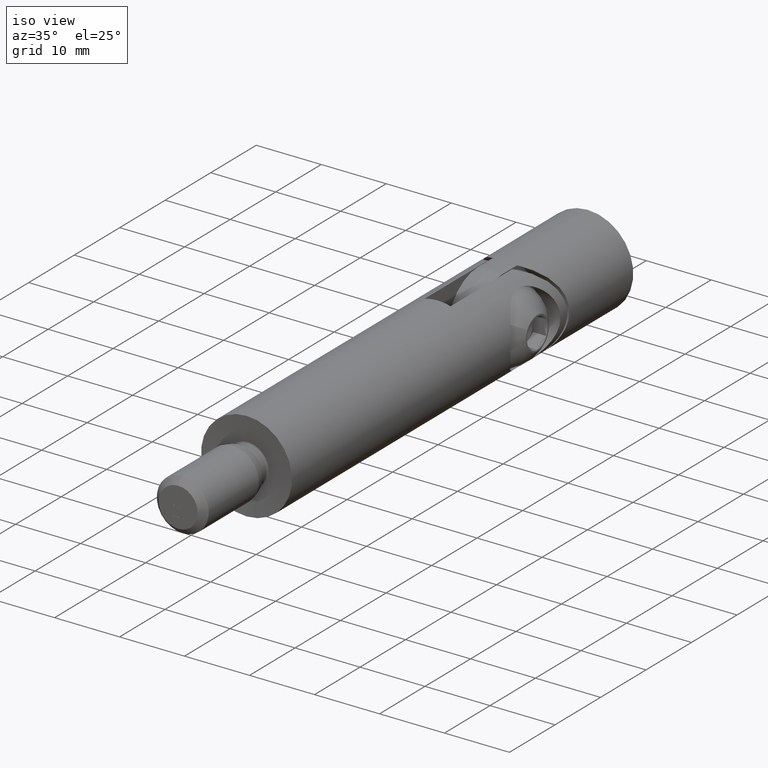
[diagram: clean part render]
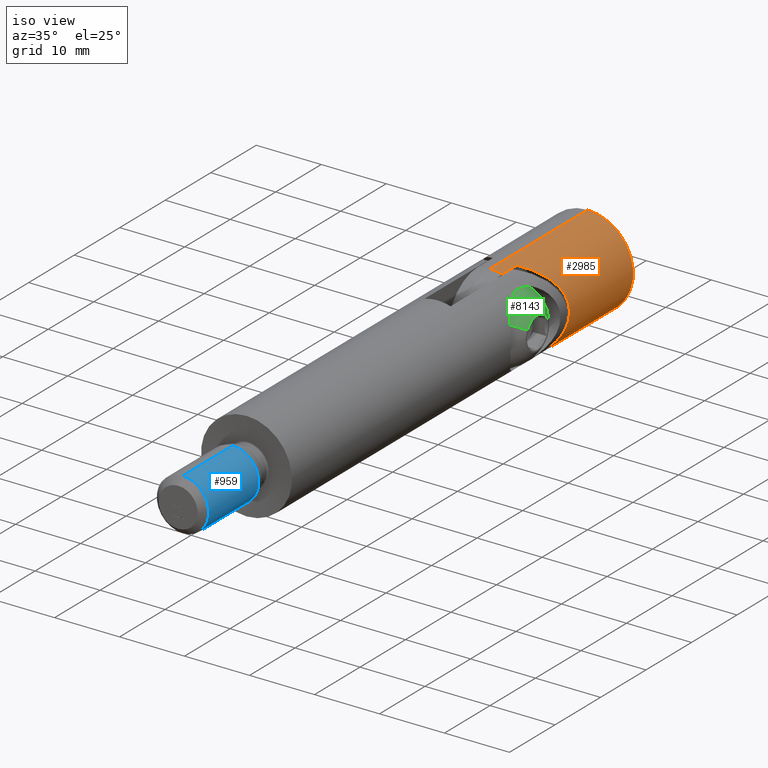
[diagram: same view with three faces highlighted in distinct colors, each labeled with its STEP entity id]
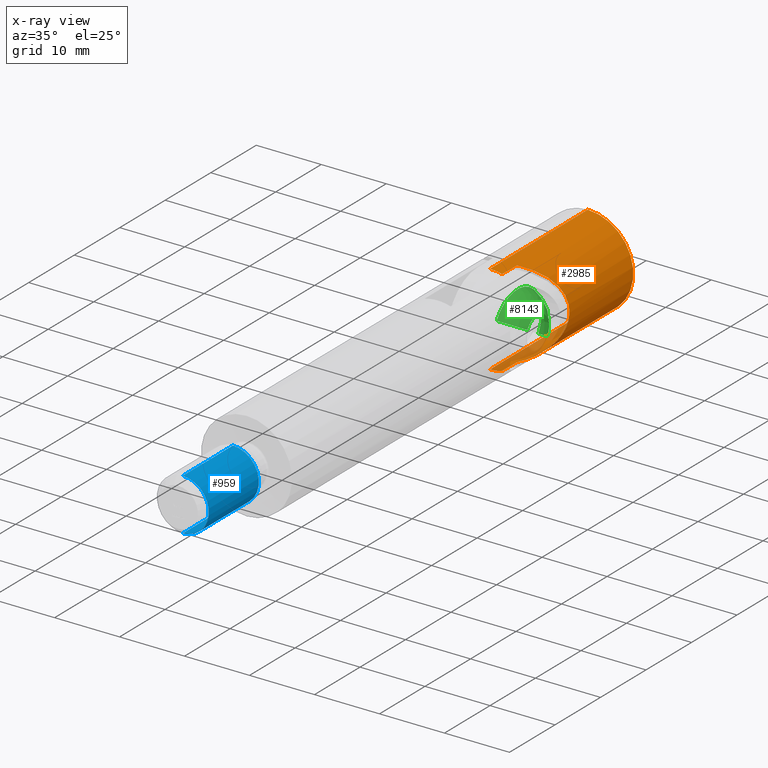
[diagram: x-ray of the same camera — body ghosted, the three highlighted faces saturated]
A machine part, iso view with three faces highlighted in distinct colors.
The next image is the same camera in x-ray (body ghosted, the three faces saturated) — at least one of them is partly hidden behind the body in this view.
Their STEP definitions:

[orange] entity #2985 — the highlighted cylindrical surface (partial cylindrical patch) has radius 7 mm, axis along (-0, -1, -0).
#200 = AXIS2_PLACEMENT_3D ( 'NONE', #10956, #4187, #4334 ) ;
#411 = CIRCLE ( 'NONE', #200, 7.000000000000000000 ) ;
#692 = CARTESIAN_POINT ( 'NONE',  ( 5.158722917360803400, 12.81821483151873600, 4.745580836556968900 ) ) ;
#828 = CARTESIAN_POINT ( 'NONE',  ( 6.852195092240849700, 14.36222759537060300, -1.446130256783215500 ) ) ;
#884 = CARTESIAN_POINT ( 'NONE',  ( 5.958167951393196700, 13.53821051843821800, -3.679402157807246900 ) ) ;
#936 = CARTESIAN_POINT ( 'NONE',  ( 6.131654851988763300, 13.69668656183775600, 3.382284619595403300 ) ) ;
#982 = CARTESIAN_POINT ( 'NONE',  ( 6.998237021894412100, 14.49835455545503200, 0.4525245489973078700 ) ) ;
#997 = EDGE_LOOP ( 'NONE', ( #6191, #10679, #7182, #13024, #4136, #1492, #4315, #2712 ) ) ;
#1089 = EDGE_CURVE ( 'NONE', #12015, #4788, #12154, .T. ) ;
#1492 = ORIENTED_EDGE ( 'NONE', *, *, #3674, .F. ) ;
#1953 = VECTOR ( 'NONE', #6720, 1000.000000000000000 ) ;
#2025 = CARTESIAN_POINT ( 'NONE',  ( 4.108124291350670800, 11.90897019837056100, -5.678559880547872800 ) ) ;
#2073 = CARTESIAN_POINT ( 'NONE',  ( 3.214992365047507400, 11.18785072850656100, -6.228062241702694700 ) ) ;
#2173 = CARTESIAN_POINT ( 'NONE',  ( 6.420604678543759800, 13.96213157371848400, -2.818021770332045200 ) ) ;
#2249 = VERTEX_POINT ( 'NONE', #7916 ) ;
#2623 = CARTESIAN_POINT ( 'NONE',  ( 0.0000000000000000000, 28.50000000000000400, -7.000000000000000000 ) ) ;
#2712 = ORIENTED_EDGE ( 'NONE', *, *, #1089, .F. ) ;
#2985 = ADVANCED_FACE ( 'NONE', ( #4346 ), #9647, .T. ) ;
#3004 = VERTEX_POINT ( 'NONE', #7850 ) ;
#3103 = CARTESIAN_POINT ( 'NONE',  ( 6.396587538579070500, 13.94011484652583600, 2.850110027396204800 ) ) ;
#3104 = DIRECTION ( 'NONE',  ( 0.0000000000000000000, 1.000000000000000000, 0.0000000000000000000 ) ) ;
#3119 = CARTESIAN_POINT ( 'NONE',  ( 1.870000000000000100, 28.50000000000000400, 6.745598564990365800 ) ) ;
#3249 = CARTESIAN_POINT ( 'NONE',  ( 2.571272951763550200, 10.71663320888812300, -6.520237004999565000 ) ) ;
#3299 = CARTESIAN_POINT ( 'NONE',  ( 4.391495753501885700, 12.14950710368595600, -5.462820688665706500 ) ) ;
#3330 = DIRECTION ( 'NONE',  ( 0.0000000000000000000, 0.0000000000000000000, -1.000000000000000000 ) ) ;
#3674 = EDGE_CURVE ( 'NONE', #8768, #6416, #10626, .T. ) ;
#3683 = AXIS2_PLACEMENT_3D ( 'NONE', #8702, #13236, #4320 ) ;
#3821 = VECTOR ( 'NONE', #7643, 1000.000000000000000 ) ;
#4136 = ORIENTED_EDGE ( 'NONE', *, *, #5294, .T. ) ;
#4146 = VERTEX_POINT ( 'NONE', #9957 ) ;
#4187 = DIRECTION ( 'NONE',  ( 0.0000000000000000000, 1.000000000000000000, 0.0000000000000000000 ) ) ;
#4315 = ORIENTED_EDGE ( 'NONE', *, *, #5689, .T. ) ;
#4320 = DIRECTION ( 'NONE',  ( 4.440892098500625400E-015, 0.0000000000000000000, -1.000000000000000000 ) ) ;
#4331 = CARTESIAN_POINT ( 'NONE',  ( 5.175268618100263400, 12.83288688309842800, -4.727790351832039700 ) ) ;
#4334 = DIRECTION ( 'NONE',  ( 0.0000000000000000000, 0.0000000000000000000, 1.000000000000000000 ) ) ;
#4346 = FACE_OUTER_BOUND ( 'NONE', #997, .T. ) ;
#4414 = LINE ( 'NONE', #4606, #1953 ) ;
#4604 = DIRECTION ( 'NONE',  ( -0.0000000000000000000, -1.000000000000000000, -0.0000000000000000000 ) ) ;
#4606 = CARTESIAN_POINT ( 'NONE',  ( 8.572527594031471200E-016, 28.50000000000000400, 7.000000000000000000 ) ) ;
#4706 = CARTESIAN_POINT ( 'NONE',  ( 0.0000000000000000000, 28.50000000000000400, -7.000000000000000000 ) ) ;
#4788 = VERTEX_POINT ( 'NONE', #12093 ) ;
#5141 = DIRECTION ( 'NONE',  ( 0.0000000000000000000, 0.0000000000000000000, -1.000000000000000000 ) ) ;
#5178 = AXIS2_PLACEMENT_3D ( 'NONE', #11369, #4604, #3330 ) ;
#5294 = EDGE_CURVE ( 'NONE', #6067, #6416, #6343, .T. ) ;
#5459 = CIRCLE ( 'NONE', #11256, 7.000000000000000000 ) ;
#5471 = CARTESIAN_POINT ( 'NONE',  ( 2.231929679439918200, 10.48470090993690500, -6.645265215172413400 ) ) ;
#5689 = EDGE_CURVE ( 'NONE', #8768, #4788, #9951, .T. ) ;
#5720 = CARTESIAN_POINT ( 'NONE',  ( 1.870000000000000100, 10.27824648249640100, -6.745598564990351600 ) ) ;
#5853 = VECTOR ( 'NONE', #8369, 1000.000000000000000 ) ;
#6067 = VERTEX_POINT ( 'NONE', #10468 ) ;
#6191 = ORIENTED_EDGE ( 'NONE', *, *, #6337, .F. ) ;
#6269 = CARTESIAN_POINT ( 'NONE',  ( 2.232222779690818700, 10.48486810220634700, 6.645183962565413400 ) ) ;
#6337 = EDGE_CURVE ( 'NONE', #2249, #12015, #411, .T. ) ;
#6343 = B_SPLINE_CURVE_WITH_KNOTS ( 'NONE', 3,
 ( #14174, #6269, #13108, #8527, #10809, #13066, #7436, #7480, #692, #8569, #9719, #936, #9918, #3103, #8758, #13342, #12323, #7728, #8914, #7623, #982, #12270, #14469, #11051, #6592, #828, #7780, #11194, #6557, #2173, #6638, #884, #10069, #7677, #14373, #4331, #8865, #3299, #2025, #13389, #2073, #3249, #5471, #14319 ),
 .UNSPECIFIED., .F., .F.,
 ( 4, 2, 2, 2, 2, 2, 2, 2, 2, 2, 2, 2, 2, 2, 2, 2, 2, 2, 2, 2, 2, 4 ),
 ( 5.502793334042465500E-018, 0.001260948252017360100, 0.002521896504034715000, 0.003782844756052070800, 0.005043793008069425700, 0.006304741260086779400, 0.006935215386095456600, 0.007565689512104133800, 0.008196163638112812000, 0.008826637764121491800, 0.01008758601613884600, 0.01071806014214752300, 0.01134853426815620100, 0.01197900839416487700, 0.01260948252017355900, 0.01387043077219091700, 0.01450090489819959700, 0.01513137902420827600, 0.01639232727622563800, 0.01765327552824299700, 0.01891422378026035700, 0.02017517203227771700 ),
 .UNSPECIFIED. ) ;
#6414 = CARTESIAN_POINT ( 'NONE',  ( 0.0000000000000000000, 6.999999999999999100, 0.0000000000000000000 ) ) ;
#6416 = VERTEX_POINT ( 'NONE', #5720 ) ;
#6557 = CARTESIAN_POINT ( 'NONE',  ( 6.632971604203730100, 14.15860253157559100, -2.246116756065410900 ) ) ;
#6592 = CARTESIAN_POINT ( 'NONE',  ( 6.926400498339868200, 14.43134183356609800, -1.033850297823961400 ) ) ;
#6638 = CARTESIAN_POINT ( 'NONE',  ( 6.250608384525469000, 13.80542658195136200, -3.175052303008694100 ) ) ;
#6720 = DIRECTION ( 'NONE',  ( -0.0000000000000000000, -1.000000000000000000, -0.0000000000000000000 ) ) ;
#6973 = LINE ( 'NONE', #3119, #3821 ) ;
#7182 = ORIENTED_EDGE ( 'NONE', *, *, #10489, .T. ) ;
#7436 = CARTESIAN_POINT ( 'NONE',  ( 4.374011456896905500, 12.13458672469868900, 5.476819986840988400 ) ) ;
#7480 = CARTESIAN_POINT ( 'NONE',  ( 4.908671774981573100, 12.59705844197533900, 5.003246425954407600 ) ) ;
#7623 = CARTESIAN_POINT ( 'NONE',  ( 6.958274881665850800, 14.46101813789559100, 0.8719268250471137200 ) ) ;
#7643 = DIRECTION ( 'NONE',  ( -0.0000000000000000000, -1.000000000000000000, -0.0000000000000000000 ) ) ;
#7677 = CARTESIAN_POINT ( 'NONE',  ( 5.638197344332720500, 13.24797314982272000, -4.152891582350720000 ) ) ;
#7728 = CARTESIAN_POINT ( 'NONE',  ( 6.793838014521782900, 14.30792750283110900, 1.698917349309824400 ) ) ;
#7780 = CARTESIAN_POINT ( 'NONE',  ( 6.806144451631316100, 14.31937098305161300, -1.649030719654067700 ) ) ;
#7850 = CARTESIAN_POINT ( 'NONE',  ( 1.870000000000000100, 7.000000000000013300, 6.745598564990365800 ) ) ;
#7916 = CARTESIAN_POINT ( 'NONE',  ( 8.572527594031471200E-016, 28.50000000000000400, 7.000000000000000000 ) ) ;
#8369 = DIRECTION ( 'NONE',  ( 0.0000000000000000000, 1.000000000000000000, 0.0000000000000000000 ) ) ;
#8527 = CARTESIAN_POINT ( 'NONE',  ( 3.204452162761719500, 11.17984585495174900, 6.233310815406204200 ) ) ;
#8569 = CARTESIAN_POINT ( 'NONE',  ( 5.623867894344017200, 13.23434774299881800, 4.183906012492019300 ) ) ;
#8702 = CARTESIAN_POINT ( 'NONE',  ( 0.0000000000000000000, 6.999999999999999100, 0.0000000000000000000 ) ) ;
#8758 = CARTESIAN_POINT ( 'NONE',  ( 6.475397021665902900, 14.01284749487702900, 2.666432615553177200 ) ) ;
#8768 = VERTEX_POINT ( 'NONE', #10078 ) ;
#8865 = CARTESIAN_POINT ( 'NONE',  ( 4.924862303000002100, 12.61127945850119900, -4.987321538263666200 ) ) ;
#8914 = CARTESIAN_POINT ( 'NONE',  ( 6.842019866135720100, 14.35275706316291400, 1.493728750700344300 ) ) ;
#9141 = VECTOR ( 'NONE', #11797, 1000.000000000000000 ) ;
#9647 = CYLINDRICAL_SURFACE ( 'NONE', #5178, 7.000000000000000000 ) ;
#9719 = CARTESIAN_POINT ( 'NONE',  ( 5.838991746425135100, 13.42942480702161500, 3.879991916570835600 ) ) ;
#9918 = CARTESIAN_POINT ( 'NONE',  ( 6.224664799307175800, 13.78198450366831400, 3.208271722163756200 ) ) ;
#9951 = CIRCLE ( 'NONE', #3683, 7.000000000000000000 ) ;
#9957 = CARTESIAN_POINT ( 'NONE',  ( 8.572527594031471200E-016, 6.999999999999999100, 7.000000000000000000 ) ) ;
#10069 = CARTESIAN_POINT ( 'NONE',  ( 5.854240371323051300, 13.44360376749639300, -3.842349211507379600 ) ) ;
#10078 = CARTESIAN_POINT ( 'NONE',  ( 1.870000000000000100, 7.000000000000013300, -6.745598564990365800 ) ) ;
#10468 = CARTESIAN_POINT ( 'NONE',  ( 1.870000000000000100, 10.27824648249640100, 6.745598564990351600 ) ) ;
#10489 = EDGE_CURVE ( 'NONE', #4146, #3004, #5459, .T. ) ;
#10626 = LINE ( 'NONE', #11884, #5853 ) ;
#10679 = ORIENTED_EDGE ( 'NONE', *, *, #11754, .T. ) ;
#10809 = CARTESIAN_POINT ( 'NONE',  ( 3.507954435931391200, 11.41896366931106300, 6.067549941654552200 ) ) ;
#10956 = CARTESIAN_POINT ( 'NONE',  ( 0.0000000000000000000, 28.50000000000000400, 0.0000000000000000000 ) ) ;
#11051 = CARTESIAN_POINT ( 'NONE',  ( 6.954558754311913800, 14.45760298298686300, -0.8244721171362937600 ) ) ;
#11194 = CARTESIAN_POINT ( 'NONE',  ( 6.696729621470678000, 14.21774042995097700, -2.048589023633518500 ) ) ;
#11256 = AXIS2_PLACEMENT_3D ( 'NONE', #6414, #3104, #5141 ) ;
#11369 = CARTESIAN_POINT ( 'NONE',  ( 0.0000000000000000000, 28.50000000000000400, 0.0000000000000000000 ) ) ;
#11754 = EDGE_CURVE ( 'NONE', #2249, #4146, #4414, .T. ) ;
#11797 = DIRECTION ( 'NONE',  ( -0.0000000000000000000, -1.000000000000000000, -0.0000000000000000000 ) ) ;
#11884 = CARTESIAN_POINT ( 'NONE',  ( 1.870000000000000100, 28.50000000000000400, -6.745598564990365800 ) ) ;
#12015 = VERTEX_POINT ( 'NONE', #4706 ) ;
#12093 = CARTESIAN_POINT ( 'NONE',  ( 0.0000000000000000000, 6.999999999999999100, -7.000000000000000000 ) ) ;
#12154 = LINE ( 'NONE', #2623, #9141 ) ;
#12270 = CARTESIAN_POINT ( 'NONE',  ( 7.000796609128579800, 14.50074350105115600, -0.1840429518579049200 ) ) ;
#12323 = CARTESIAN_POINT ( 'NONE',  ( 6.682000951160642200, 14.20407566106755200, 2.096048285711821000 ) ) ;
#13024 = ORIENTED_EDGE ( 'NONE', *, *, #13256, .F. ) ;
#13066 = CARTESIAN_POINT ( 'NONE',  ( 4.091997679669153100, 11.89550207808536100, 5.690031775713134000 ) ) ;
#13108 = CARTESIAN_POINT ( 'NONE',  ( 2.566222363606459800, 10.71323240953256000, 6.522053370328572800 ) ) ;
#13236 = DIRECTION ( 'NONE',  ( 0.0000000000000000000, 1.000000000000000000, 0.0000000000000000000 ) ) ;
#13256 = EDGE_CURVE ( 'NONE', #6067, #3004, #6973, .T. ) ;
#13342 = CARTESIAN_POINT ( 'NONE',  ( 6.618102049652102400, 14.14482596973591600, 2.289400520196515300 ) ) ;
#13389 = CARTESIAN_POINT ( 'NONE',  ( 3.520633913200304800, 11.42901415284270400, -6.060351834619606100 ) ) ;
#14174 = CARTESIAN_POINT ( 'NONE',  ( 1.870000000000000100, 10.27824648249640100, 6.745598564990351600 ) ) ;
#14319 = CARTESIAN_POINT ( 'NONE',  ( 1.870000000000000100, 10.27824648249640100, -6.745598564990351600 ) ) ;
#14373 = CARTESIAN_POINT ( 'NONE',  ( 5.525644809559133300, 13.14654712759854100, -4.301290638713522800 ) ) ;
#14469 = CARTESIAN_POINT ( 'NONE',  ( 6.991893741852944500, 14.49243170686529900, -0.3988278347223765400 ) ) ;

[blue] entity #959 — the highlighted cylindrical surface (edge-blend (fillet) strip) has radius 4 mm, axis along (-0, -1, -0).
#310 = DIRECTION ( 'NONE',  ( 0.0000000000000000000, 0.0000000000000000000, -1.000000000000000000 ) ) ;
#959 = ADVANCED_FACE ( 'NONE', ( #3165 ), #6514, .T. ) ;
#2208 = CARTESIAN_POINT ( 'NONE',  ( 0.0000000000000000000, -2.999999999999999100, 0.0000000000000000000 ) ) ;
#2377 = CIRCLE ( 'NONE', #3331, 4.000000000000000000 ) ;
#3165 = FACE_OUTER_BOUND ( 'NONE', #13467, .T. ) ;
#3331 = AXIS2_PLACEMENT_3D ( 'NONE', #2208, #8896, #8994 ) ;
#3721 = ORIENTED_EDGE ( 'NONE', *, *, #6719, .T. ) ;
#3881 = ORIENTED_EDGE ( 'NONE', *, *, #11590, .T. ) ;
#4982 = VERTEX_POINT ( 'NONE', #11501 ) ;
#5738 = CARTESIAN_POINT ( 'NONE',  ( 0.0000000000000000000, -14.00000000000000200, 3.999999999999998200 ) ) ;
#5765 = EDGE_CURVE ( 'NONE', #12232, #4982, #6240, .T. ) ;
#5982 = VERTEX_POINT ( 'NONE', #5738 ) ;
#6033 = CARTESIAN_POINT ( 'NONE',  ( 0.0000000000000000000, -14.00000000000000200, 0.0000000000000000000 ) ) ;
#6162 = EDGE_CURVE ( 'NONE', #4982, #5982, #7282, .T. ) ;
#6240 = LINE ( 'NONE', #7909, #6419 ) ;
#6419 = VECTOR ( 'NONE', #10294, 1000.000000000000000 ) ;
#6514 = CYLINDRICAL_SURFACE ( 'NONE', #13009, 4.000000000000000000 ) ;
#6719 = EDGE_CURVE ( 'NONE', #10700, #5982, #9762, .T. ) ;
#6739 = VECTOR ( 'NONE', #12109, 1000.000000000000000 ) ;
#6993 = DIRECTION ( 'NONE',  ( -0.0000000000000000000, -1.000000000000000000, -0.0000000000000000000 ) ) ;
#7282 = CIRCLE ( 'NONE', #13580, 4.000000000000000000 ) ;
#7508 = CARTESIAN_POINT ( 'NONE',  ( 4.898587196589412800E-016, 0.0000000000000000000, 4.000000000000000000 ) ) ;
#7538 = CARTESIAN_POINT ( 'NONE',  ( 0.0000000000000000000, -2.999999999999999100, -4.000000000000000000 ) ) ;
#7909 = CARTESIAN_POINT ( 'NONE',  ( 0.0000000000000000000, 0.0000000000000000000, -4.000000000000000000 ) ) ;
#8125 = CARTESIAN_POINT ( 'NONE',  ( 0.0000000000000000000, 0.0000000000000000000, 0.0000000000000000000 ) ) ;
#8314 = CARTESIAN_POINT ( 'NONE',  ( 4.898587196589412800E-016, -2.999999999999999100, 4.000000000000000000 ) ) ;
#8542 = ORIENTED_EDGE ( 'NONE', *, *, #5765, .F. ) ;
#8896 = DIRECTION ( 'NONE',  ( -0.0000000000000000000, -1.000000000000000000, -0.0000000000000000000 ) ) ;
#8994 = DIRECTION ( 'NONE',  ( 0.0000000000000000000, 0.0000000000000000000, -1.000000000000000000 ) ) ;
#9762 = LINE ( 'NONE', #7508, #6739 ) ;
#10025 = ORIENTED_EDGE ( 'NONE', *, *, #6162, .F. ) ;
#10294 = DIRECTION ( 'NONE',  ( -0.0000000000000000000, -1.000000000000000000, -0.0000000000000000000 ) ) ;
#10512 = DIRECTION ( 'NONE',  ( 0.0000000000000000000, 0.0000000000000000000, -1.000000000000000000 ) ) ;
#10700 = VERTEX_POINT ( 'NONE', #8314 ) ;
#11501 = CARTESIAN_POINT ( 'NONE',  ( 4.898587196589410900E-016, -14.00000000000000200, -3.999999999999998200 ) ) ;
#11590 = EDGE_CURVE ( 'NONE', #12232, #10700, #2377, .T. ) ;
#11606 = DIRECTION ( 'NONE',  ( -0.0000000000000000000, -1.000000000000000000, -0.0000000000000000000 ) ) ;
#12109 = DIRECTION ( 'NONE',  ( -0.0000000000000000000, -1.000000000000000000, -0.0000000000000000000 ) ) ;
#12232 = VERTEX_POINT ( 'NONE', #7538 ) ;
#13009 = AXIS2_PLACEMENT_3D ( 'NONE', #8125, #6993, #10512 ) ;
#13467 = EDGE_LOOP ( 'NONE', ( #3881, #3721, #10025, #8542 ) ) ;
#13580 = AXIS2_PLACEMENT_3D ( 'NONE', #6033, #11606, #310 ) ;

[green] entity #8143 — the highlighted spherical surface has radius 5.6637 mm.
#56 = EDGE_CURVE ( 'NONE', #5726, #7655, #6185, .T. ) ;
#459 = DIRECTION ( 'NONE',  ( -0.0000000000000000000, 0.0000000000000000000, 1.000000000000000000 ) ) ;
#599 = CARTESIAN_POINT ( 'NONE',  ( 0.0000000000000000000, 5.058111541106021600, 0.0000000000000000000 ) ) ;
#746 = EDGE_CURVE ( 'NONE', #14176, #4375, #11111, .T. ) ;
#875 = EDGE_CURVE ( 'NONE', #4375, #12372, #9691, .T. ) ;
#1146 = AXIS2_PLACEMENT_3D ( 'NONE', #9741, #2978, #12244 ) ;
#1664 = ORIENTED_EDGE ( 'NONE', *, *, #11267, .T. ) ;
#2435 = ORIENTED_EDGE ( 'NONE', *, *, #56, .F. ) ;
#2964 = DIRECTION ( 'NONE',  ( -1.000000000000000000, 0.0000000000000000000, 0.0000000000000000000 ) ) ;
#2978 = DIRECTION ( 'NONE',  ( 1.224646799147353200E-016, 0.0000000000000000000, 1.000000000000000000 ) ) ;
#3407 = CARTESIAN_POINT ( 'NONE',  ( 5.300000000000000700, 3.061350000000000900, 0.0000000000000000000 ) ) ;
#3551 = SPHERICAL_SURFACE ( 'NONE', #8117, 5.663661064368179500 ) ;
#3843 = ORIENTED_EDGE ( 'NONE', *, *, #10360, .F. ) ;
#3959 = CIRCLE ( 'NONE', #1146, 5.663661064368179500 ) ;
#4224 = CARTESIAN_POINT ( 'NONE',  ( 2.548051076758503600, 0.0000000000000000000, 0.0000000000000000000 ) ) ;
#4318 = DIRECTION ( 'NONE',  ( 0.0000000000000000000, 0.0000000000000000000, -1.000000000000000000 ) ) ;
#4375 = VERTEX_POINT ( 'NONE', #4968 ) ;
#4663 = EDGE_LOOP ( 'NONE', ( #11608, #13829, #1664, #2435, #3843 ) ) ;
#4968 = CARTESIAN_POINT ( 'NONE',  ( 6.490628035480971900E-016, 3.061350000000000900, 5.299999999999999800 ) ) ;
#5176 = AXIS2_PLACEMENT_3D ( 'NONE', #11128, #10863, #10465 ) ;
#5211 = DIRECTION ( 'NONE',  ( 0.0000000000000000000, 0.0000000000000000000, -1.000000000000000000 ) ) ;
#5726 = VERTEX_POINT ( 'NONE', #4224 ) ;
#6039 = CARTESIAN_POINT ( 'NONE',  ( 0.0000000000000000000, 5.058111541106021600, 0.0000000000000000000 ) ) ;
#6185 = CIRCLE ( 'NONE', #5176, 2.548051076758503600 ) ;
#6453 = CARTESIAN_POINT ( 'NONE',  ( -2.548051076758503600, 0.0000000000000000000, 4.805545315348619700E-016 ) ) ;
#7139 = DIRECTION ( 'NONE',  ( 0.0000000000000000000, 0.0000000000000000000, -1.000000000000000000 ) ) ;
#7331 = CARTESIAN_POINT ( 'NONE',  ( -5.300000000000000700, 3.061350000000000900, 6.490628035480972900E-016 ) ) ;
#7655 = VERTEX_POINT ( 'NONE', #6453 ) ;
#8117 = AXIS2_PLACEMENT_3D ( 'NONE', #6039, #459, #8341 ) ;
#8143 = ADVANCED_FACE ( 'NONE', ( #14461 ), #3551, .T. ) ;
#8341 = DIRECTION ( 'NONE',  ( 1.000000000000000000, 0.0000000000000000000, 0.0000000000000000000 ) ) ;
#9515 = AXIS2_PLACEMENT_3D ( 'NONE', #11088, #12257, #4318 ) ;
#9691 = CIRCLE ( 'NONE', #10286, 5.299999999999999800 ) ;
#9741 = CARTESIAN_POINT ( 'NONE',  ( 0.0000000000000000000, 5.058111541106021600, 0.0000000000000000000 ) ) ;
#10286 = AXIS2_PLACEMENT_3D ( 'NONE', #11970, #14308, #5211 ) ;
#10360 = EDGE_CURVE ( 'NONE', #14176, #5726, #14086, .T. ) ;
#10465 = DIRECTION ( 'NONE',  ( 0.0000000000000000000, 0.0000000000000000000, -1.000000000000000000 ) ) ;
#10863 = DIRECTION ( 'NONE',  ( 0.0000000000000000000, -1.000000000000000000, 0.0000000000000000000 ) ) ;
#11088 = CARTESIAN_POINT ( 'NONE',  ( 0.0000000000000000000, 3.061350000000000900, 0.0000000000000000000 ) ) ;
#11111 = CIRCLE ( 'NONE', #9515, 5.299999999999999800 ) ;
#11128 = CARTESIAN_POINT ( 'NONE',  ( 0.0000000000000000000, 0.0000000000000000000, 0.0000000000000000000 ) ) ;
#11267 = EDGE_CURVE ( 'NONE', #12372, #7655, #3959, .T. ) ;
#11608 = ORIENTED_EDGE ( 'NONE', *, *, #746, .T. ) ;
#11970 = CARTESIAN_POINT ( 'NONE',  ( 0.0000000000000000000, 3.061350000000000900, 0.0000000000000000000 ) ) ;
#12244 = DIRECTION ( 'NONE',  ( 1.000000000000000000, 0.0000000000000000000, -1.224646799147353200E-016 ) ) ;
#12257 = DIRECTION ( 'NONE',  ( 0.0000000000000000000, -1.000000000000000000, 0.0000000000000000000 ) ) ;
#12291 = AXIS2_PLACEMENT_3D ( 'NONE', #599, #7139, #2964 ) ;
#12372 = VERTEX_POINT ( 'NONE', #7331 ) ;
#13829 = ORIENTED_EDGE ( 'NONE', *, *, #875, .T. ) ;
#14086 = CIRCLE ( 'NONE', #12291, 5.663661064368179500 ) ;
#14176 = VERTEX_POINT ( 'NONE', #3407 ) ;
#14308 = DIRECTION ( 'NONE',  ( 0.0000000000000000000, -1.000000000000000000, 0.0000000000000000000 ) ) ;
#14461 = FACE_OUTER_BOUND ( 'NONE', #4663, .T. ) ;